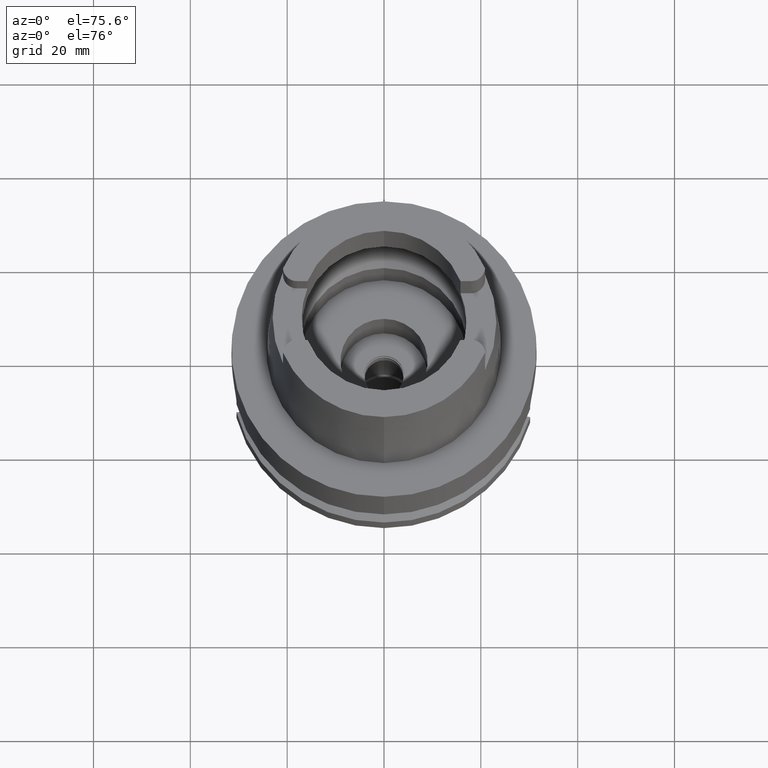
[diagram: clean part render]
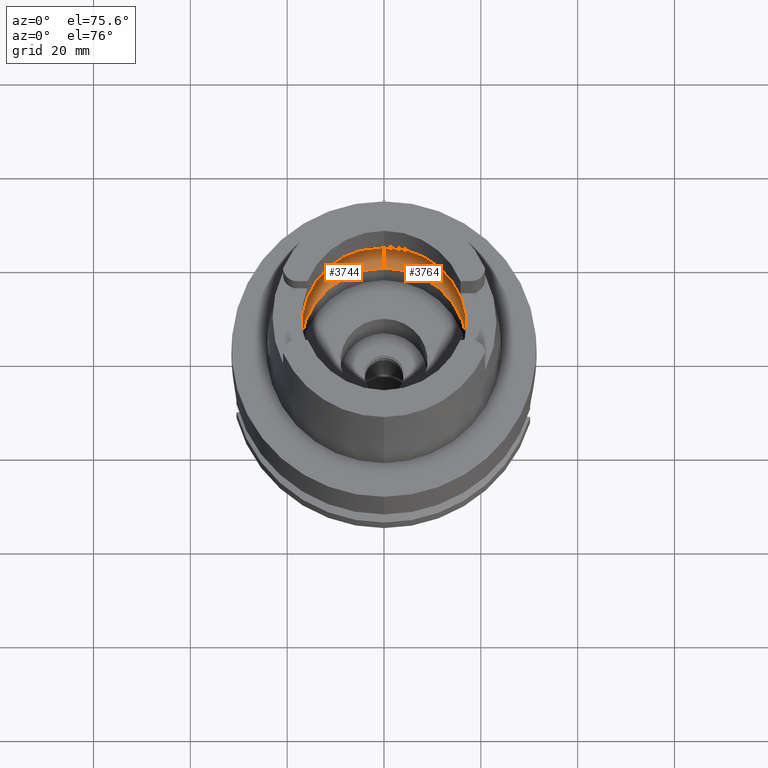
[diagram: same view with one multi-face feature highlighted, each face labeled with its STEP entity id]
A machine part, auxiliary view. The highlighted faces form ONE feature: a constant-radius fillet chain: 2 tangent blend faces with common blend radius 8 mm. The faces share edges in the B-rep.
Their STEP definitions:
[1] entity #3744 (Torus):
#498=CARTESIAN_POINT('',(-1.984575864666E1,-2.479085262491E0,6.186348233825E0));
#541=CARTESIAN_POINT('',(-1.984575864666E1,-2.479085262491E0,6.186348233825E0));
#542=CARTESIAN_POINT('',(-1.987370771882E1,-2.255345260874E0,5.989212771894E0));
#543=CARTESIAN_POINT('',(-1.991332895189E1,-1.758882382518E0,5.646921041047E0));
#544=CARTESIAN_POINT('',(-1.994018891292E1,-9.058447440112E-1,
5.323259319607E0));
#545=CARTESIAN_POINT('',(-1.994501428476E1,-3.022092202537E-1,5.25E0));
#546=CARTESIAN_POINT('',(-1.994501428476E1,0.E0,5.25E0));
#551=CARTESIAN_POINT('',(-1.994501428476E1,0.E0,5.25E0));
#552=CARTESIAN_POINT('',(-1.994501428476E1,3.022079959061E-1,5.25E0));
#553=CARTESIAN_POINT('',(-1.994018898018E1,9.058420490936E-1,5.323258465798E0));
#554=CARTESIAN_POINT('',(-1.991332889140E1,1.758884038002E0,5.646921660838E0));
#555=CARTESIAN_POINT('',(-1.987370764676E1,2.255345837801E0,5.989213280220E0));
#556=CARTESIAN_POINT('',(-1.984575864666E1,2.479085262491E0,6.186348233825E0));
#561=CARTESIAN_POINT('',(0.E0,0.E0,6.186348233825E0));
#562=DIRECTION('',(0.E0,0.E0,-1.E0));
#563=DIRECTION('',(-9.922879323328E-1,1.239542631245E-1,0.E0));
#564=AXIS2_PLACEMENT_3D('',#561,#562,#563);
#569=CARTESIAN_POINT('',(0.E0,0.E0,1.500000000001E-1));
#570=DIRECTION('',(0.E0,0.E0,1.E0));
#571=DIRECTION('',(0.E0,1.E0,0.E0));
#572=AXIS2_PLACEMENT_3D('',#569,#570,#571);
#577=CARTESIAN_POINT('',(0.E0,-1.2E1,6.186348233825E0));
#578=DIRECTION('',(-1.E0,0.E0,0.E0));
#579=DIRECTION('',(0.E0,-6.5625E-1,-7.545435292281E-1));
#580=AXIS2_PLACEMENT_3D('',#577,#578,#579);
#585=CARTESIAN_POINT('',(0.E0,0.E0,6.186348233825E0));
#586=DIRECTION('',(0.E0,0.E0,-1.E0));
#587=DIRECTION('',(0.E0,-1.E0,0.E0));
#588=AXIS2_PLACEMENT_3D('',#585,#586,#587);
#619=CARTESIAN_POINT('',(0.E0,1.2E1,6.186348233825E0));
#620=DIRECTION('',(1.E0,0.E0,0.E0));
#621=DIRECTION('',(0.E0,6.5625E-1,-7.545435292281E-1));
#622=AXIS2_PLACEMENT_3D('',#619,#620,#621);
#3040=VERTEX_POINT('',#498);
#3041=CARTESIAN_POINT('',(0.E0,-2.E1,6.186348233825E0));
#3042=VERTEX_POINT('',#3041);
#3043=CARTESIAN_POINT('',(0.E0,2.E1,6.186348233825E0));
#3044=VERTEX_POINT('',#3043);
#3045=CARTESIAN_POINT('',(-1.984575864666E1,2.479085262490E0,6.186348233825E0));
#3046=VERTEX_POINT('',#3045);
#3047=CARTESIAN_POINT('',(-1.994501428476E1,0.E0,5.25E0));
#3048=VERTEX_POINT('',#3047);
#3053=CARTESIAN_POINT('',(0.E0,1.725E1,1.500000000001E-1));
#3054=VERTEX_POINT('',#3053);
#3055=CARTESIAN_POINT('',(0.E0,-1.725E1,1.500000000001E-1));
#3056=VERTEX_POINT('',#3055);
#3727=CARTESIAN_POINT('',(0.E0,0.E0,6.186348233825E0));
#3728=DIRECTION('',(0.E0,0.E0,1.E0));
#3729=DIRECTION('',(0.E0,1.E0,0.E0));
#3730=AXIS2_PLACEMENT_3D('',#3727,#3728,#3729);
#3731=TOROIDAL_SURFACE('',#3730,1.2E1,8.E0);
#3732=ORIENTED_EDGE('',*,*,#3708,.T.);
#3733=ORIENTED_EDGE('',*,*,#3719,.T.);
#3734=ORIENTED_EDGE('',*,*,#3690,.T.);
#3736=ORIENTED_EDGE('',*,*,#3735,.F.);
#3738=ORIENTED_EDGE('',*,*,#3737,.T.);
#3740=ORIENTED_EDGE('',*,*,#3739,.T.);
#3741=ORIENTED_EDGE('',*,*,#3683,.T.);
#3742=EDGE_LOOP('',(#3732,#3733,#3734,#3736,#3738,#3740,#3741));
#3743=FACE_OUTER_BOUND('',#3742,.F.);
#547=B_SPLINE_CURVE_WITH_KNOTS('',3,(#541,#542,#543,#544,#545,#546),
.UNSPECIFIED.,.F.,.F.,(4,1,1,4),(0.E0,3.333333333333E-1,6.666666666667E-1,1.E0),
.UNSPECIFIED.);
#557=B_SPLINE_CURVE_WITH_KNOTS('',3,(#551,#552,#553,#554,#555,#556),
.UNSPECIFIED.,.F.,.F.,(4,1,1,4),(0.E0,3.333333333333E-1,6.666666666667E-1,1.E0),
.UNSPECIFIED.);
#565=CIRCLE('',#564,2.E1);
#573=CIRCLE('',#572,1.725E1);
#581=CIRCLE('',#580,8.E0);
#589=CIRCLE('',#588,2.E1);
#623=CIRCLE('',#622,8.E0);
#3683=EDGE_CURVE('',#3042,#3040,#589,.T.);
#3690=EDGE_CURVE('',#3046,#3044,#565,.T.);
#3708=EDGE_CURVE('',#3040,#3048,#547,.T.);
#3719=EDGE_CURVE('',#3048,#3046,#557,.T.);
#3735=EDGE_CURVE('',#3054,#3044,#623,.T.);
#3737=EDGE_CURVE('',#3054,#3056,#573,.T.);
#3739=EDGE_CURVE('',#3056,#3042,#581,.T.);
#3744=ADVANCED_FACE('',(#3743),#3731,.F.);
[2] entity #3764 (Torus):
#577=CARTESIAN_POINT('',(0.E0,-1.2E1,6.186348233825E0));
#578=DIRECTION('',(-1.E0,0.E0,0.E0));
#579=DIRECTION('',(0.E0,-6.5625E-1,-7.545435292281E-1));
#580=AXIS2_PLACEMENT_3D('',#577,#578,#579);
#593=CARTESIAN_POINT('',(1.994501428476E1,0.E0,5.25E0));
#594=CARTESIAN_POINT('',(1.994501428476E1,-3.022109186395E-1,5.25E0));
#595=CARTESIAN_POINT('',(1.994018886112E1,-9.058486760299E-1,5.323260138817E0));
#596=CARTESIAN_POINT('',(1.991332874853E1,-1.758885968800E0,5.646923075843E0));
#597=CARTESIAN_POINT('',(1.987370755586E1,-2.255346565443E0,5.989213921339E0));
#598=CARTESIAN_POINT('',(1.984575864666E1,-2.479085262491E0,6.186348233825E0));
#603=CARTESIAN_POINT('',(0.E0,0.E0,6.186348233825E0));
#604=DIRECTION('',(0.E0,0.E0,-1.E0));
#605=DIRECTION('',(9.922879323328E-1,-1.239542631245E-1,0.E0));
#606=AXIS2_PLACEMENT_3D('',#603,#604,#605);
#611=CARTESIAN_POINT('',(0.E0,0.E0,1.500000000001E-1));
#612=DIRECTION('',(0.E0,0.E0,1.E0));
#613=DIRECTION('',(0.E0,-1.E0,0.E0));
#614=AXIS2_PLACEMENT_3D('',#611,#612,#613);
#619=CARTESIAN_POINT('',(0.E0,1.2E1,6.186348233825E0));
#620=DIRECTION('',(1.E0,0.E0,0.E0));
#621=DIRECTION('',(0.E0,6.5625E-1,-7.545435292281E-1));
#622=AXIS2_PLACEMENT_3D('',#619,#620,#621);
#627=CARTESIAN_POINT('',(0.E0,0.E0,6.186348233825E0));
#628=DIRECTION('',(0.E0,0.E0,-1.E0));
#629=DIRECTION('',(0.E0,1.E0,0.E0));
#630=AXIS2_PLACEMENT_3D('',#627,#628,#629);
#635=CARTESIAN_POINT('',(1.984575864666E1,2.479085262491E0,6.186348233825E0));
#636=CARTESIAN_POINT('',(1.987370781167E1,2.255344517610E0,5.989212117010E0));
#637=CARTESIAN_POINT('',(1.991332909699E1,1.758880408516E0,5.646919602665E0));
#638=CARTESIAN_POINT('',(1.994018903230E1,9.058380857037E-1,5.323257641096E0));
#639=CARTESIAN_POINT('',(1.994501428476E1,3.022062841843E-1,5.25E0));
#640=CARTESIAN_POINT('',(1.994501428476E1,0.E0,5.25E0));
#652=CARTESIAN_POINT('',(1.984575864666E1,-2.479085262491E0,6.186348233825E0));
#681=CARTESIAN_POINT('',(1.984575864666E1,2.479085262491E0,6.186348233825E0));
#3041=CARTESIAN_POINT('',(0.E0,-2.E1,6.186348233825E0));
#3042=VERTEX_POINT('',#3041);
#3043=CARTESIAN_POINT('',(0.E0,2.E1,6.186348233825E0));
#3044=VERTEX_POINT('',#3043);
#3049=VERTEX_POINT('',#652);
#3051=VERTEX_POINT('',#593);
#3052=VERTEX_POINT('',#681);
#3053=CARTESIAN_POINT('',(0.E0,1.725E1,1.500000000001E-1));
#3054=VERTEX_POINT('',#3053);
#3055=CARTESIAN_POINT('',(0.E0,-1.725E1,1.500000000001E-1));
#3056=VERTEX_POINT('',#3055);
#3745=CARTESIAN_POINT('',(0.E0,0.E0,6.186348233825E0));
#3746=DIRECTION('',(0.E0,0.E0,1.E0));
#3747=DIRECTION('',(0.E0,1.E0,0.E0));
#3748=AXIS2_PLACEMENT_3D('',#3745,#3746,#3747);
#3749=TOROIDAL_SURFACE('',#3748,1.2E1,8.E0);
#3751=ORIENTED_EDGE('',*,*,#3750,.T.);
#3753=ORIENTED_EDGE('',*,*,#3752,.T.);
#3754=ORIENTED_EDGE('',*,*,#3739,.F.);
#3756=ORIENTED_EDGE('',*,*,#3755,.T.);
#3757=ORIENTED_EDGE('',*,*,#3735,.T.);
#3759=ORIENTED_EDGE('',*,*,#3758,.T.);
#3761=ORIENTED_EDGE('',*,*,#3760,.T.);
#3762=EDGE_LOOP('',(#3751,#3753,#3754,#3756,#3757,#3759,#3761));
#3763=FACE_OUTER_BOUND('',#3762,.F.);
#581=CIRCLE('',#580,8.E0);
#599=B_SPLINE_CURVE_WITH_KNOTS('',3,(#593,#594,#595,#596,#597,#598),
.UNSPECIFIED.,.F.,.F.,(4,1,1,4),(0.E0,3.333333333333E-1,6.666666666667E-1,1.E0),
.UNSPECIFIED.);
#607=CIRCLE('',#606,2.E1);
#615=CIRCLE('',#614,1.725E1);
#623=CIRCLE('',#622,8.E0);
#631=CIRCLE('',#630,2.E1);
#641=B_SPLINE_CURVE_WITH_KNOTS('',3,(#635,#636,#637,#638,#639,#640),
.UNSPECIFIED.,.F.,.F.,(4,1,1,4),(0.E0,3.333333333333E-1,6.666666666667E-1,1.E0),
.UNSPECIFIED.);
#3735=EDGE_CURVE('',#3054,#3044,#623,.T.);
#3739=EDGE_CURVE('',#3056,#3042,#581,.T.);
#3750=EDGE_CURVE('',#3051,#3049,#599,.T.);
#3752=EDGE_CURVE('',#3049,#3042,#607,.T.);
#3755=EDGE_CURVE('',#3056,#3054,#615,.T.);
#3758=EDGE_CURVE('',#3044,#3052,#631,.T.);
#3760=EDGE_CURVE('',#3052,#3051,#641,.T.);
#3764=ADVANCED_FACE('',(#3763),#3749,.F.);